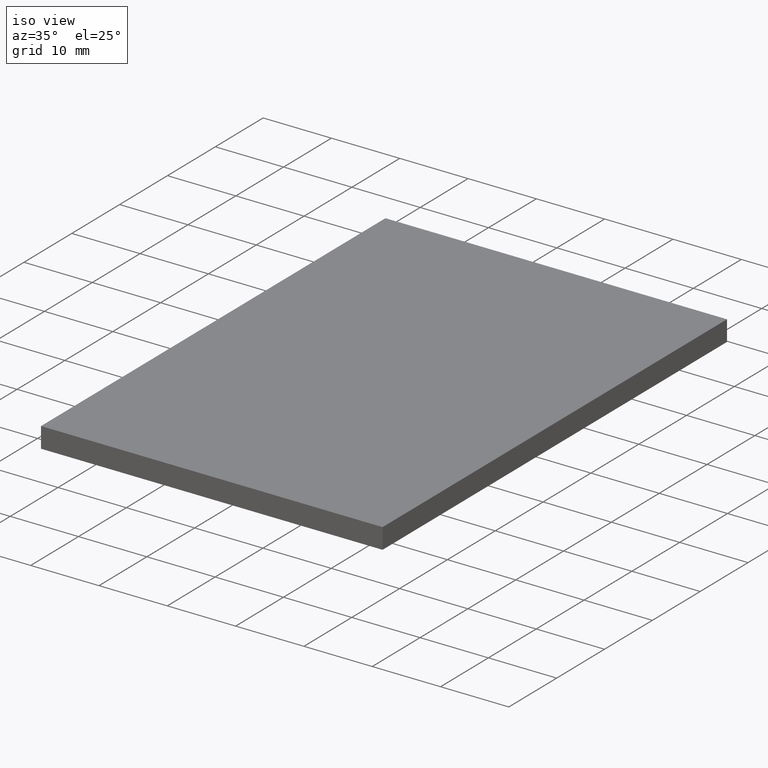
[diagram: clean part render]
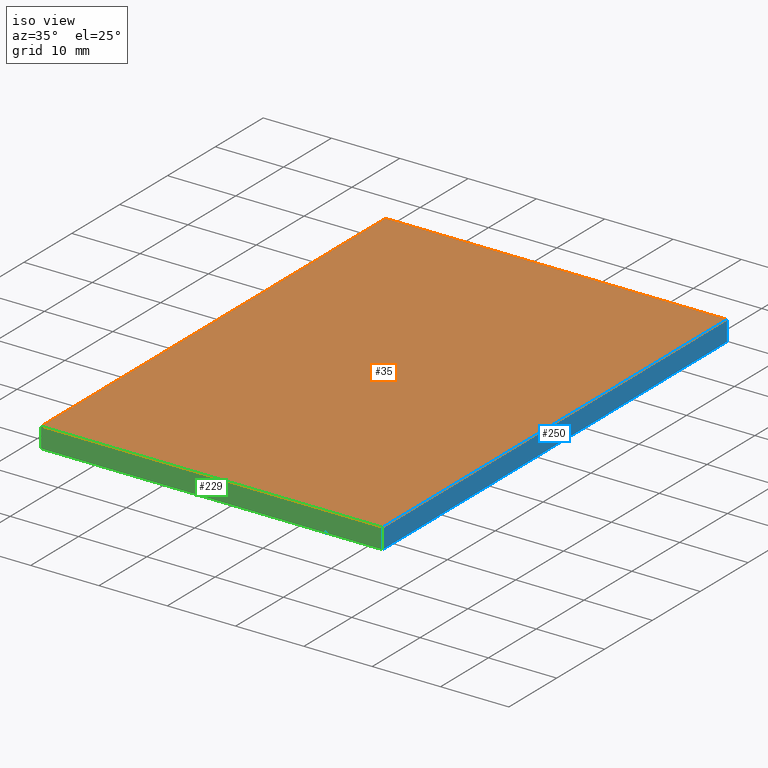
[diagram: same view with three faces highlighted in distinct colors, each labeled with its STEP entity id]
A machine part, iso view with three faces highlighted in distinct colors.
Their STEP definitions:

[orange] entity #35 — the highlighted planar face has unit normal (-0, 0, 1).
#1 = CARTESIAN_POINT ( 'NONE',  ( -6.351626016260153700, -64.47967479674797200, 3.000000000000000000 ) ) ;
#8 = LINE ( 'NONE', #118, #186 ) ;
#12 = DIRECTION ( 'NONE',  ( 1.000000000000000000, 0.0000000000000000000, 0.0000000000000000000 ) ) ;
#14 = DIRECTION ( 'NONE',  ( -0.0000000000000000000, 0.0000000000000000000, 1.000000000000000000 ) ) ;
#18 = CARTESIAN_POINT ( 'NONE',  ( -6.351626016260162500, 7.520325203252024700, 3.000000000000000000 ) ) ;
#28 = ORIENTED_EDGE ( 'NONE', *, *, #224, .T. ) ;
#33 = DIRECTION ( 'NONE',  ( -1.000000000000000000, -0.0000000000000000000, -0.0000000000000000000 ) ) ;
#35 = ADVANCED_FACE ( 'NONE', ( #85 ), #151, .T. ) ;
#50 = DIRECTION ( 'NONE',  ( -9.637352644315595200E-017, 1.000000000000000000, -0.0000000000000000000 ) ) ;
#52 = LINE ( 'NONE', #235, #167 ) ;
#61 = VECTOR ( 'NONE', #304, 1000.000000000000000 ) ;
#65 = VERTEX_POINT ( 'NONE', #264 ) ;
#85 = FACE_OUTER_BOUND ( 'NONE', #137, .T. ) ;
#99 = DIRECTION ( 'NONE',  ( 1.000000000000000000, 0.0000000000000000000, 0.0000000000000000000 ) ) ;
#116 = LINE ( 'NONE', #298, #61 ) ;
#118 = CARTESIAN_POINT ( 'NONE',  ( -6.351626016260162500, 7.520325203252024700, 3.000000000000000000 ) ) ;
#137 = EDGE_LOOP ( 'NONE', ( #302, #28, #196, #263 ) ) ;
#151 = PLANE ( 'NONE',  #203 ) ;
#159 = EDGE_CURVE ( 'NONE', #65, #313, #310, .T. ) ;
#160 = CARTESIAN_POINT ( 'NONE',  ( 43.64837398373984500, 7.520325203252024700, 3.000000000000000000 ) ) ;
#166 = VERTEX_POINT ( 'NONE', #1 ) ;
#167 = VECTOR ( 'NONE', #12, 1000.000000000000000 ) ;
#168 = VECTOR ( 'NONE', #50, 1000.000000000000000 ) ;
#171 = CARTESIAN_POINT ( 'NONE',  ( 0.0000000000000000000, 0.0000000000000000000, 3.000000000000000000 ) ) ;
#186 = VECTOR ( 'NONE', #33, 1000.000000000000000 ) ;
#196 = ORIENTED_EDGE ( 'NONE', *, *, #159, .T. ) ;
#198 = EDGE_CURVE ( 'NONE', #313, #212, #8, .T. ) ;
#203 = AXIS2_PLACEMENT_3D ( 'NONE', #171, #14, #99 ) ;
#212 = VERTEX_POINT ( 'NONE', #18 ) ;
#224 = EDGE_CURVE ( 'NONE', #166, #65, #52, .T. ) ;
#235 = CARTESIAN_POINT ( 'NONE',  ( -6.351626016260153700, -64.47967479674797200, 3.000000000000000000 ) ) ;
#249 = EDGE_CURVE ( 'NONE', #212, #166, #116, .T. ) ;
#257 = CARTESIAN_POINT ( 'NONE',  ( 43.64837398373984500, 7.520325203252024700, 3.000000000000000000 ) ) ;
#263 = ORIENTED_EDGE ( 'NONE', *, *, #198, .T. ) ;
#264 = CARTESIAN_POINT ( 'NONE',  ( 43.64837398373985200, -64.47967479674797200, 3.000000000000000000 ) ) ;
#298 = CARTESIAN_POINT ( 'NONE',  ( -6.351626016260162500, 7.520325203252024700, 3.000000000000000000 ) ) ;
#302 = ORIENTED_EDGE ( 'NONE', *, *, #249, .T. ) ;
#304 = DIRECTION ( 'NONE',  ( 1.204669080539449300E-016, -1.000000000000000000, 0.0000000000000000000 ) ) ;
#310 = LINE ( 'NONE', #257, #168 ) ;
#313 = VERTEX_POINT ( 'NONE', #160 ) ;

[blue] entity #250 — the highlighted planar face has unit normal (-1, -0, 0).
#22 = ORIENTED_EDGE ( 'NONE', *, *, #127, .T. ) ;
#23 = DIRECTION ( 'NONE',  ( -1.000000000000000000, -9.637352644315595200E-017, 0.0000000000000000000 ) ) ;
#29 = EDGE_LOOP ( 'NONE', ( #22, #314, #57, #277 ) ) ;
#32 = LINE ( 'NONE', #301, #185 ) ;
#47 = CARTESIAN_POINT ( 'NONE',  ( 43.64837398373984500, 7.520325203252024700, 3.000000000000000000 ) ) ;
#48 = VECTOR ( 'NONE', #213, 1000.000000000000000 ) ;
#50 = DIRECTION ( 'NONE',  ( -9.637352644315595200E-017, 1.000000000000000000, -0.0000000000000000000 ) ) ;
#57 = ORIENTED_EDGE ( 'NONE', *, *, #159, .F. ) ;
#65 = VERTEX_POINT ( 'NONE', #264 ) ;
#87 = EDGE_CURVE ( 'NONE', #65, #288, #32, .T. ) ;
#109 = PLANE ( 'NONE',  #190 ) ;
#113 = DIRECTION ( 'NONE',  ( -0.0000000000000000000, -0.0000000000000000000, -1.000000000000000000 ) ) ;
#125 = DIRECTION ( 'NONE',  ( -0.0000000000000000000, -0.0000000000000000000, -1.000000000000000000 ) ) ;
#127 = EDGE_CURVE ( 'NONE', #288, #267, #282, .T. ) ;
#129 = CARTESIAN_POINT ( 'NONE',  ( 43.64837398373985200, -64.47967479674797200, 0.0000000000000000000 ) ) ;
#136 = DIRECTION ( 'NONE',  ( 9.637352644315595200E-017, -1.000000000000000000, 0.0000000000000000000 ) ) ;
#159 = EDGE_CURVE ( 'NONE', #65, #313, #310, .T. ) ;
#160 = CARTESIAN_POINT ( 'NONE',  ( 43.64837398373984500, 7.520325203252024700, 3.000000000000000000 ) ) ;
#168 = VECTOR ( 'NONE', #50, 1000.000000000000000 ) ;
#185 = VECTOR ( 'NONE', #125, 1000.000000000000000 ) ;
#190 = AXIS2_PLACEMENT_3D ( 'NONE', #271, #23, #136 ) ;
#194 = CARTESIAN_POINT ( 'NONE',  ( 43.64837398373984500, 7.520325203252024700, 0.0000000000000000000 ) ) ;
#210 = EDGE_CURVE ( 'NONE', #313, #267, #289, .T. ) ;
#213 = DIRECTION ( 'NONE',  ( -9.637352644315595200E-017, 1.000000000000000000, -0.0000000000000000000 ) ) ;
#219 = VECTOR ( 'NONE', #113, 1000.000000000000000 ) ;
#245 = CARTESIAN_POINT ( 'NONE',  ( 43.64837398373984500, 7.520325203252024700, 0.0000000000000000000 ) ) ;
#250 = ADVANCED_FACE ( 'NONE', ( #308 ), #109, .F. ) ;
#257 = CARTESIAN_POINT ( 'NONE',  ( 43.64837398373984500, 7.520325203252024700, 3.000000000000000000 ) ) ;
#264 = CARTESIAN_POINT ( 'NONE',  ( 43.64837398373985200, -64.47967479674797200, 3.000000000000000000 ) ) ;
#267 = VERTEX_POINT ( 'NONE', #245 ) ;
#271 = CARTESIAN_POINT ( 'NONE',  ( 43.64837398373984500, 7.520325203252024700, 3.000000000000000000 ) ) ;
#277 = ORIENTED_EDGE ( 'NONE', *, *, #87, .T. ) ;
#282 = LINE ( 'NONE', #194, #48 ) ;
#288 = VERTEX_POINT ( 'NONE', #129 ) ;
#289 = LINE ( 'NONE', #47, #219 ) ;
#301 = CARTESIAN_POINT ( 'NONE',  ( 43.64837398373985200, -64.47967479674797200, 3.000000000000000000 ) ) ;
#308 = FACE_OUTER_BOUND ( 'NONE', #29, .T. ) ;
#310 = LINE ( 'NONE', #257, #168 ) ;
#313 = VERTEX_POINT ( 'NONE', #160 ) ;
#314 = ORIENTED_EDGE ( 'NONE', *, *, #210, .F. ) ;

[green] entity #229 — the highlighted planar face has unit normal (0, 1, 0).
#1 = CARTESIAN_POINT ( 'NONE',  ( -6.351626016260153700, -64.47967479674797200, 3.000000000000000000 ) ) ;
#12 = DIRECTION ( 'NONE',  ( 1.000000000000000000, 0.0000000000000000000, 0.0000000000000000000 ) ) ;
#16 = DIRECTION ( 'NONE',  ( 0.0000000000000000000, 1.000000000000000000, 0.0000000000000000000 ) ) ;
#32 = LINE ( 'NONE', #301, #185 ) ;
#52 = LINE ( 'NONE', #235, #167 ) ;
#53 = CARTESIAN_POINT ( 'NONE',  ( -6.351626016260153700, -64.47967479674797200, 3.000000000000000000 ) ) ;
#59 = LINE ( 'NONE', #287, #106 ) ;
#65 = VERTEX_POINT ( 'NONE', #264 ) ;
#77 = ORIENTED_EDGE ( 'NONE', *, *, #187, .T. ) ;
#87 = EDGE_CURVE ( 'NONE', #65, #288, #32, .T. ) ;
#90 = ORIENTED_EDGE ( 'NONE', *, *, #177, .T. ) ;
#95 = CARTESIAN_POINT ( 'NONE',  ( -6.351626016260153700, -64.47967479674797200, 0.0000000000000000000 ) ) ;
#97 = DIRECTION ( 'NONE',  ( 0.0000000000000000000, -0.0000000000000000000, 1.000000000000000000 ) ) ;
#106 = VECTOR ( 'NONE', #115, 1000.000000000000000 ) ;
#115 = DIRECTION ( 'NONE',  ( 1.000000000000000000, 0.0000000000000000000, 0.0000000000000000000 ) ) ;
#125 = DIRECTION ( 'NONE',  ( -0.0000000000000000000, -0.0000000000000000000, -1.000000000000000000 ) ) ;
#129 = CARTESIAN_POINT ( 'NONE',  ( 43.64837398373985200, -64.47967479674797200, 0.0000000000000000000 ) ) ;
#143 = ORIENTED_EDGE ( 'NONE', *, *, #224, .F. ) ;
#145 = ORIENTED_EDGE ( 'NONE', *, *, #87, .F. ) ;
#148 = DIRECTION ( 'NONE',  ( -0.0000000000000000000, -0.0000000000000000000, -1.000000000000000000 ) ) ;
#156 = VECTOR ( 'NONE', #148, 1000.000000000000000 ) ;
#166 = VERTEX_POINT ( 'NONE', #1 ) ;
#167 = VECTOR ( 'NONE', #12, 1000.000000000000000 ) ;
#177 = EDGE_CURVE ( 'NONE', #247, #288, #59, .T. ) ;
#185 = VECTOR ( 'NONE', #125, 1000.000000000000000 ) ;
#187 = EDGE_CURVE ( 'NONE', #166, #247, #243, .T. ) ;
#224 = EDGE_CURVE ( 'NONE', #166, #65, #52, .T. ) ;
#229 = ADVANCED_FACE ( 'NONE', ( #315 ), #300, .F. ) ;
#235 = CARTESIAN_POINT ( 'NONE',  ( -6.351626016260153700, -64.47967479674797200, 3.000000000000000000 ) ) ;
#243 = LINE ( 'NONE', #294, #156 ) ;
#247 = VERTEX_POINT ( 'NONE', #95 ) ;
#251 = EDGE_LOOP ( 'NONE', ( #90, #145, #143, #77 ) ) ;
#264 = CARTESIAN_POINT ( 'NONE',  ( 43.64837398373985200, -64.47967479674797200, 3.000000000000000000 ) ) ;
#287 = CARTESIAN_POINT ( 'NONE',  ( -6.351626016260153700, -64.47967479674797200, 0.0000000000000000000 ) ) ;
#288 = VERTEX_POINT ( 'NONE', #129 ) ;
#294 = CARTESIAN_POINT ( 'NONE',  ( -6.351626016260153700, -64.47967479674797200, 3.000000000000000000 ) ) ;
#300 = PLANE ( 'NONE',  #303 ) ;
#301 = CARTESIAN_POINT ( 'NONE',  ( 43.64837398373985200, -64.47967479674797200, 3.000000000000000000 ) ) ;
#303 = AXIS2_PLACEMENT_3D ( 'NONE', #53, #16, #97 ) ;
#315 = FACE_OUTER_BOUND ( 'NONE', #251, .T. ) ;